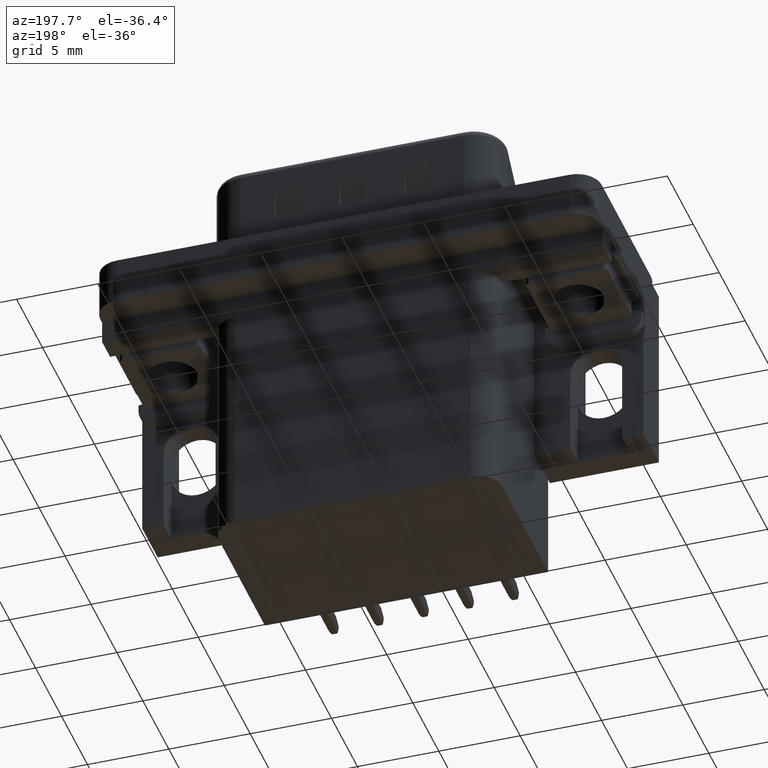
[diagram: clean part render]
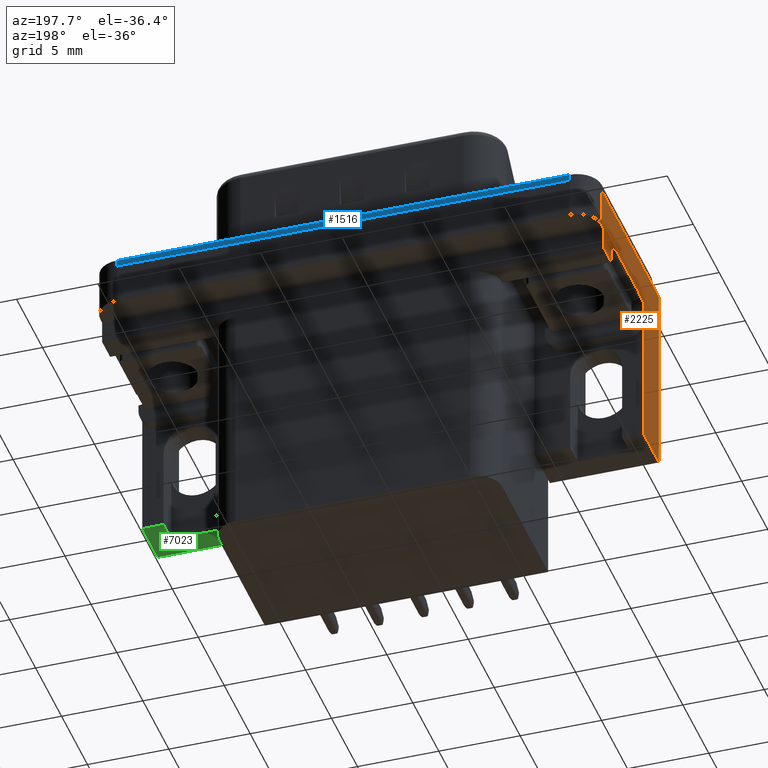
[diagram: same view with three faces highlighted in distinct colors, each labeled with its STEP entity id]
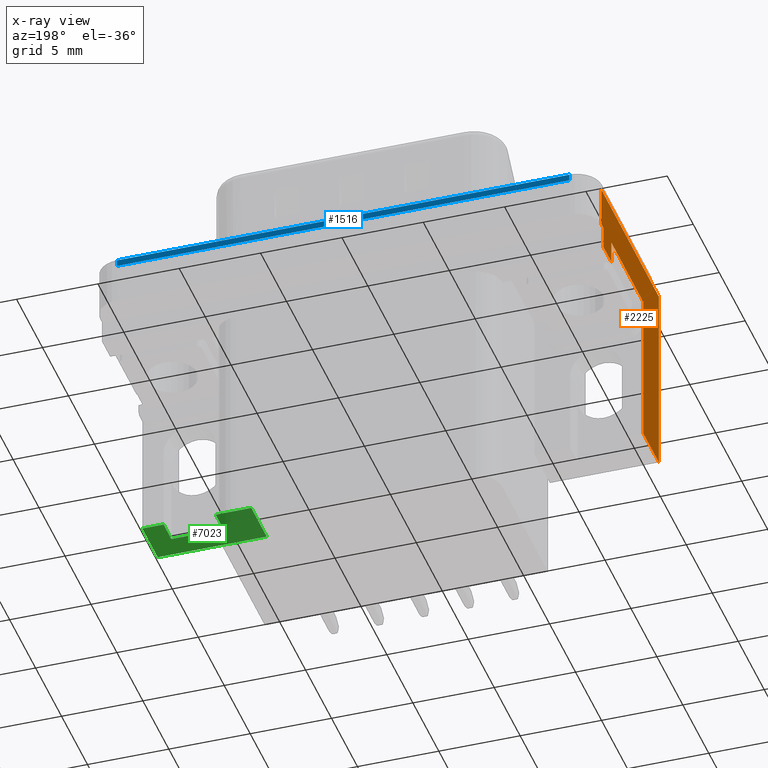
[diagram: x-ray of the same camera — body ghosted, the three highlighted faces saturated]
A machine part, auxiliary view with three faces highlighted in distinct colors.
The next image is the same camera in x-ray (body ghosted, the three faces saturated) — at least one of them is partly hidden behind the body in this view.
Their STEP definitions:

[orange] entity #2225 — the highlighted planar face has unit normal (-1, 0, 0).
#240 = CARTESIAN_POINT ( 'NONE',  ( -2.910000000000004600, -6.294999999999998200, -12.05000000000000100 ) ) ;
#341 = CARTESIAN_POINT ( 'NONE',  ( -2.910000000000005900, -3.294999999999998200, -18.75999999999999800 ) ) ;
#343 = CARTESIAN_POINT ( 'NONE',  ( -2.910000000000005500, 4.424999999999992700, -3.899999999999999900 ) ) ;
#594 = VECTOR ( 'NONE', #10083, 1000.000000000000000 ) ;
#701 = CARTESIAN_POINT ( 'NONE',  ( -2.910000000000006400, -6.274999999999998600, -2.500000000000000000 ) ) ;
#762 = VECTOR ( 'NONE', #1427, 1000.000000000000000 ) ;
#1119 = CARTESIAN_POINT ( 'NONE',  ( -2.910000000000006400, -6.274999999999998600, -2.500000000000000000 ) ) ;
#1199 = AXIS2_PLACEMENT_3D ( 'NONE', #1119, #4032, #4273 ) ;
#1427 = DIRECTION ( 'NONE',  ( -0.0000000000000000000, -0.0000000000000000000, 1.000000000000000000 ) ) ;
#1469 = ORIENTED_EDGE ( 'NONE', *, *, #10593, .T. ) ;
#1606 = LINE ( 'NONE', #10979, #9900 ) ;
#1742 = LINE ( 'NONE', #1770, #10037 ) ;
#1770 = CARTESIAN_POINT ( 'NONE',  ( -2.910000000000006400, -6.274999999999998600, 0.0000000000000000000 ) ) ;
#1849 = ORIENTED_EDGE ( 'NONE', *, *, #10485, .T. ) ;
#1932 = LINE ( 'NONE', #240, #5185 ) ;
#2225 = ADVANCED_FACE ( 'NONE', ( #13139 ), #10428, .T. ) ;
#2686 = CARTESIAN_POINT ( 'NONE',  ( -2.910000000000006400, -6.274999999999998600, -2.500000000000000000 ) ) ;
#2697 = VERTEX_POINT ( 'NONE', #9271 ) ;
#2820 = VECTOR ( 'NONE', #4365, 1000.000000000000000 ) ;
#2922 = DIRECTION ( 'NONE',  ( 0.0000000000000000000, 0.0000000000000000000, 1.000000000000000000 ) ) ;
#3004 = VECTOR ( 'NONE', #10636, 1000.000000000000000 ) ;
#3017 = ORIENTED_EDGE ( 'NONE', *, *, #7480, .F. ) ;
#3708 = CARTESIAN_POINT ( 'NONE',  ( -2.910000000000005500, 4.424999999999992700, -3.899999999999999900 ) ) ;
#3807 = DIRECTION ( 'NONE',  ( -0.0000000000000000000, -1.000000000000000000, -0.0000000000000000000 ) ) ;
#4032 = DIRECTION ( 'NONE',  ( -1.000000000000000000, 0.0000000000000000000, 0.0000000000000000000 ) ) ;
#4040 = VECTOR ( 'NONE', #3807, 1000.000000000000000 ) ;
#4273 = DIRECTION ( 'NONE',  ( 0.0000000000000000000, 0.0000000000000000000, 1.000000000000000000 ) ) ;
#4321 = VERTEX_POINT ( 'NONE', #5685 ) ;
#4365 = DIRECTION ( 'NONE',  ( 0.0000000000000000000, 0.0000000000000000000, 1.000000000000000000 ) ) ;
#4440 = CARTESIAN_POINT ( 'NONE',  ( -2.910000000000004600, -3.294999999999998200, -12.05000000000000100 ) ) ;
#4904 = VERTEX_POINT ( 'NONE', #14018 ) ;
#4966 = ORIENTED_EDGE ( 'NONE', *, *, #7264, .F. ) ;
#5059 = ORIENTED_EDGE ( 'NONE', *, *, #10791, .F. ) ;
#5117 = EDGE_LOOP ( 'NONE', ( #4966, #1469, #3017, #5059, #10599, #10489, #6187, #8160, #1849, #8858 ) ) ;
#5185 = VECTOR ( 'NONE', #6801, 1000.000000000000000 ) ;
#5430 = CARTESIAN_POINT ( 'NONE',  ( -2.910000000000006400, 4.775000000000002100, -2.500000000000000000 ) ) ;
#5589 = DIRECTION ( 'NONE',  ( -0.0000000000000000000, -1.000000000000000000, -0.0000000000000000000 ) ) ;
#5685 = CARTESIAN_POINT ( 'NONE',  ( -2.910000000000006400, 4.775000000000002100, -2.500000000000000000 ) ) ;
#5688 = LINE ( 'NONE', #5430, #2820 ) ;
#5943 = EDGE_CURVE ( 'NONE', #7847, #10066, #6572, .T. ) ;
#6187 = ORIENTED_EDGE ( 'NONE', *, *, #6510, .F. ) ;
#6247 = CARTESIAN_POINT ( 'NONE',  ( -2.910000000000006400, -3.294999999999998600, -2.500000000000000000 ) ) ;
#6345 = VERTEX_POINT ( 'NONE', #13059 ) ;
#6387 = EDGE_CURVE ( 'NONE', #4321, #2697, #1606, .T. ) ;
#6510 = EDGE_CURVE ( 'NONE', #12375, #8077, #11757, .T. ) ;
#6572 = LINE ( 'NONE', #341, #762 ) ;
#6801 = DIRECTION ( 'NONE',  ( 6.472848790958235800E-017, 1.000000000000000000, -0.0000000000000000000 ) ) ;
#7264 = EDGE_CURVE ( 'NONE', #8297, #7847, #1932, .T. ) ;
#7480 = EDGE_CURVE ( 'NONE', #4904, #6345, #1742, .T. ) ;
#7847 = VERTEX_POINT ( 'NONE', #4440 ) ;
#8077 = VERTEX_POINT ( 'NONE', #343 ) ;
#8160 = ORIENTED_EDGE ( 'NONE', *, *, #10152, .T. ) ;
#8297 = VERTEX_POINT ( 'NONE', #11592 ) ;
#8858 = ORIENTED_EDGE ( 'NONE', *, *, #5943, .F. ) ;
#9271 = CARTESIAN_POINT ( 'NONE',  ( -2.910000000000006400, 4.424999999999992700, -2.500000000000000000 ) ) ;
#9368 = DIRECTION ( 'NONE',  ( -0.0000000000000000000, -1.000000000000000000, -0.0000000000000000000 ) ) ;
#9462 = VERTEX_POINT ( 'NONE', #10481 ) ;
#9575 = CARTESIAN_POINT ( 'NONE',  ( -2.910000000000005900, 2.894999999999992500, -3.899999999999999900 ) ) ;
#9811 = EDGE_CURVE ( 'NONE', #8077, #2697, #12100, .T. ) ;
#9900 = VECTOR ( 'NONE', #5589, 1000.000000000000000 ) ;
#10037 = VECTOR ( 'NONE', #9368, 1000.000000000000000 ) ;
#10066 = VERTEX_POINT ( 'NONE', #6247 ) ;
#10083 = DIRECTION ( 'NONE',  ( -0.0000000000000000000, -0.0000000000000000000, 1.000000000000000000 ) ) ;
#10129 = CARTESIAN_POINT ( 'NONE',  ( -2.910000000000005500, 4.424999999999992700, -3.899999999999999900 ) ) ;
#10152 = EDGE_CURVE ( 'NONE', #12375, #9462, #11595, .T. ) ;
#10428 = PLANE ( 'NONE',  #1199 ) ;
#10481 = CARTESIAN_POINT ( 'NONE',  ( -2.910000000000005900, 2.894999999999992500, -2.500000000000000000 ) ) ;
#10485 = EDGE_CURVE ( 'NONE', #9462, #10066, #12921, .T. ) ;
#10489 = ORIENTED_EDGE ( 'NONE', *, *, #9811, .F. ) ;
#10557 = VECTOR ( 'NONE', #2922, 1000.000000000000000 ) ;
#10593 = EDGE_CURVE ( 'NONE', #8297, #6345, #13432, .T. ) ;
#10599 = ORIENTED_EDGE ( 'NONE', *, *, #6387, .T. ) ;
#10636 = DIRECTION ( 'NONE',  ( -0.0000000000000000000, -0.0000000000000000000, 1.000000000000000000 ) ) ;
#10791 = EDGE_CURVE ( 'NONE', #4321, #4904, #5688, .T. ) ;
#10979 = CARTESIAN_POINT ( 'NONE',  ( -2.910000000000006400, -6.274999999999998600, -2.500000000000000000 ) ) ;
#11068 = VECTOR ( 'NONE', #13391, 1000.000000000000000 ) ;
#11592 = CARTESIAN_POINT ( 'NONE',  ( -2.910000000000004600, -6.274999999999998600, -12.05000000000000100 ) ) ;
#11595 = LINE ( 'NONE', #9575, #3004 ) ;
#11757 = LINE ( 'NONE', #3708, #11068 ) ;
#12100 = LINE ( 'NONE', #10129, #594 ) ;
#12375 = VERTEX_POINT ( 'NONE', #13566 ) ;
#12921 = LINE ( 'NONE', #2686, #4040 ) ;
#13059 = CARTESIAN_POINT ( 'NONE',  ( -2.910000000000006400, -6.274999999999998600, 0.0000000000000000000 ) ) ;
#13139 = FACE_OUTER_BOUND ( 'NONE', #5117, .T. ) ;
#13391 = DIRECTION ( 'NONE',  ( 2.834515483622234600E-016, 1.000000000000000000, -0.0000000000000000000 ) ) ;
#13432 = LINE ( 'NONE', #701, #10557 ) ;
#13566 = CARTESIAN_POINT ( 'NONE',  ( -2.910000000000005900, 2.894999999999992500, -3.899999999999999900 ) ) ;
#14018 = CARTESIAN_POINT ( 'NONE',  ( -2.910000000000006400, 4.775000000000002100, 0.0000000000000000000 ) ) ;

[blue] entity #1516 — the highlighted planar face has unit normal (0, -1, 0).
#118 = LINE ( 'NONE', #2304, #5586 ) ;
#322 = CARTESIAN_POINT ( 'NONE',  ( -1.409999999999994800, 6.274999999999995900, 0.0000000000000000000 ) ) ;
#718 = CARTESIAN_POINT ( 'NONE',  ( 26.39999999999999900, 6.274999999999997700, 0.0000000000000000000 ) ) ;
#797 = EDGE_CURVE ( 'NONE', #9365, #12160, #118, .T. ) ;
#861 = CARTESIAN_POINT ( 'NONE',  ( 26.39999999999999900, 6.274999999999997700, 0.4000000000000000200 ) ) ;
#1444 = EDGE_CURVE ( 'NONE', #2888, #12160, #4447, .T. ) ;
#1516 = ADVANCED_FACE ( 'NONE', ( #9803 ), #4176, .F. ) ;
#1540 = CARTESIAN_POINT ( 'NONE',  ( 26.39999999999999900, 6.274999999999997700, 0.4000000000000000200 ) ) ;
#1595 = CARTESIAN_POINT ( 'NONE',  ( -1.409999999999994800, 6.274999999999995900, 0.4000000000000000200 ) ) ;
#1848 = VECTOR ( 'NONE', #13731, 1000.000000000000000 ) ;
#2291 = DIRECTION ( 'NONE',  ( 6.237768701822393400E-017, -1.000000000000000000, 0.0000000000000000000 ) ) ;
#2304 = CARTESIAN_POINT ( 'NONE',  ( -1.409999999999994800, 6.274999999999995900, 0.4000000000000000200 ) ) ;
#2888 = VERTEX_POINT ( 'NONE', #5299 ) ;
#3276 = EDGE_LOOP ( 'NONE', ( #7468, #10078, #12126, #4640 ) ) ;
#3519 = DIRECTION ( 'NONE',  ( -0.0000000000000000000, -0.0000000000000000000, -1.000000000000000000 ) ) ;
#4176 = PLANE ( 'NONE',  #10889 ) ;
#4447 = LINE ( 'NONE', #718, #1848 ) ;
#4640 = ORIENTED_EDGE ( 'NONE', *, *, #8124, .T. ) ;
#5299 = CARTESIAN_POINT ( 'NONE',  ( 26.39999999999999900, 6.274999999999997700, 0.0000000000000000000 ) ) ;
#5586 = VECTOR ( 'NONE', #3519, 1000.000000000000000 ) ;
#5863 = CARTESIAN_POINT ( 'NONE',  ( 26.39999999999999900, 6.274999999999997700, 0.4000000000000000200 ) ) ;
#6222 = EDGE_CURVE ( 'NONE', #13385, #9365, #12262, .T. ) ;
#7468 = ORIENTED_EDGE ( 'NONE', *, *, #1444, .T. ) ;
#8124 = EDGE_CURVE ( 'NONE', #13385, #2888, #12218, .T. ) ;
#8365 = VECTOR ( 'NONE', #12304, 1000.000000000000000 ) ;
#8459 = DIRECTION ( 'NONE',  ( -1.000000000000000000, -6.237768701822393400E-017, 0.0000000000000000000 ) ) ;
#9365 = VERTEX_POINT ( 'NONE', #1595 ) ;
#9416 = VECTOR ( 'NONE', #8459, 1000.000000000000000 ) ;
#9803 = FACE_OUTER_BOUND ( 'NONE', #3276, .T. ) ;
#10078 = ORIENTED_EDGE ( 'NONE', *, *, #797, .F. ) ;
#10194 = DIRECTION ( 'NONE',  ( 1.000000000000000000, 6.237768701822393400E-017, 0.0000000000000000000 ) ) ;
#10889 = AXIS2_PLACEMENT_3D ( 'NONE', #11524, #2291, #10194 ) ;
#11524 = CARTESIAN_POINT ( 'NONE',  ( 26.39999999999999900, 6.274999999999997700, 0.4000000000000000200 ) ) ;
#12126 = ORIENTED_EDGE ( 'NONE', *, *, #6222, .F. ) ;
#12160 = VERTEX_POINT ( 'NONE', #322 ) ;
#12218 = LINE ( 'NONE', #5863, #8365 ) ;
#12262 = LINE ( 'NONE', #861, #9416 ) ;
#12304 = DIRECTION ( 'NONE',  ( -0.0000000000000000000, -0.0000000000000000000, -1.000000000000000000 ) ) ;
#13385 = VERTEX_POINT ( 'NONE', #1540 ) ;
#13731 = DIRECTION ( 'NONE',  ( -1.000000000000000000, -6.237768701822393400E-017, 0.0000000000000000000 ) ) ;

[green] entity #7023 — the highlighted planar face has unit normal (0, 0, 1).
#31 = VERTEX_POINT ( 'NONE', #9097 ) ;
#78 = DIRECTION ( 'NONE',  ( 1.000000000000000000, 0.0000000000000000000, -0.0000000000000000000 ) ) ;
#117 = VERTEX_POINT ( 'NONE', #7704 ) ;
#253 = CARTESIAN_POINT ( 'NONE',  ( 27.89999999999999500, -6.294999999999999900, -12.05000000000000100 ) ) ;
#292 = LINE ( 'NONE', #12338, #11140 ) ;
#553 = EDGE_CURVE ( 'NONE', #649, #11576, #292, .T. ) ;
#593 = ORIENTED_EDGE ( 'NONE', *, *, #553, .F. ) ;
#649 = VERTEX_POINT ( 'NONE', #7891 ) ;
#757 = LINE ( 'NONE', #8406, #11931 ) ;
#925 = DIRECTION ( 'NONE',  ( 0.0000000000000000000, 1.000000000000000000, -0.0000000000000000000 ) ) ;
#1042 = EDGE_LOOP ( 'NONE', ( #7139, #11251, #11337, #7859, #1633, #593, #8093, #10449, #13166 ) ) ;
#1140 = VERTEX_POINT ( 'NONE', #8037 ) ;
#1633 = ORIENTED_EDGE ( 'NONE', *, *, #2021, .F. ) ;
#1923 = VECTOR ( 'NONE', #5864, 1000.000000000000000 ) ;
#2021 = EDGE_CURVE ( 'NONE', #11576, #117, #6275, .T. ) ;
#2290 = DIRECTION ( 'NONE',  ( 1.000000000000000000, -6.472848790958238200E-017, 0.0000000000000000000 ) ) ;
#2403 = EDGE_CURVE ( 'NONE', #6626, #13014, #11800, .T. ) ;
#2428 = LINE ( 'NONE', #8263, #13550 ) ;
#2452 = DIRECTION ( 'NONE',  ( 6.472848790958235800E-017, 1.000000000000000000, -0.0000000000000000000 ) ) ;
#2532 = VECTOR ( 'NONE', #6611, 1000.000000000000000 ) ;
#2696 = CARTESIAN_POINT ( 'NONE',  ( 21.19999999999999600, -3.294999999999999500, -12.05000000000000100 ) ) ;
#3815 = VECTOR ( 'NONE', #13425, 1000.000000000000000 ) ;
#4146 = DIRECTION ( 'NONE',  ( 6.472848790958235800E-017, 1.000000000000000000, -0.0000000000000000000 ) ) ;
#4270 = CARTESIAN_POINT ( 'NONE',  ( 21.19999999999999600, -6.294999999999999000, -12.05000000000000100 ) ) ;
#4849 = LINE ( 'NONE', #10187, #1923 ) ;
#4871 = VERTEX_POINT ( 'NONE', #12861 ) ;
#5864 = DIRECTION ( 'NONE',  ( -1.000000000000000000, 0.0000000000000000000, 0.0000000000000000000 ) ) ;
#6275 = LINE ( 'NONE', #10616, #8790 ) ;
#6415 = CARTESIAN_POINT ( 'NONE',  ( 21.19999999999999600, -3.294999999999999500, -12.05000000000000100 ) ) ;
#6604 = CARTESIAN_POINT ( 'NONE',  ( 21.19999999999999600, -3.294999999999999500, -12.05000000000000100 ) ) ;
#6611 = DIRECTION ( 'NONE',  ( 6.472848790958235800E-017, 1.000000000000000000, -0.0000000000000000000 ) ) ;
#6623 = DIRECTION ( 'NONE',  ( 0.0000000000000000000, 0.0000000000000000000, 1.000000000000000000 ) ) ;
#6626 = VERTEX_POINT ( 'NONE', #12397 ) ;
#6965 = VERTEX_POINT ( 'NONE', #10831 ) ;
#7023 = ADVANCED_FACE ( 'NONE', ( #8229 ), #13050, .F. ) ;
#7139 = ORIENTED_EDGE ( 'NONE', *, *, #11623, .T. ) ;
#7669 = CARTESIAN_POINT ( 'NONE',  ( 21.19999999999999600, -6.294999999999999000, -12.05000000000000100 ) ) ;
#7704 = CARTESIAN_POINT ( 'NONE',  ( 23.39000000000000800, -3.294999999999999500, -12.05000000000000100 ) ) ;
#7859 = ORIENTED_EDGE ( 'NONE', *, *, #8663, .T. ) ;
#7891 = CARTESIAN_POINT ( 'NONE',  ( 26.58999999999998900, -4.794999999999998200, -12.05000000000000100 ) ) ;
#8037 = CARTESIAN_POINT ( 'NONE',  ( 27.89999999999999500, -3.294999999999999900, -12.05000000000000100 ) ) ;
#8093 = ORIENTED_EDGE ( 'NONE', *, *, #8809, .F. ) ;
#8229 = FACE_OUTER_BOUND ( 'NONE', #1042, .T. ) ;
#8244 = LINE ( 'NONE', #253, #11418 ) ;
#8263 = CARTESIAN_POINT ( 'NONE',  ( 26.58999999999998900, -4.774999999999997700, -12.05000000000000100 ) ) ;
#8406 = CARTESIAN_POINT ( 'NONE',  ( 21.19999999999999600, -6.294999999999999000, -12.05000000000000100 ) ) ;
#8663 = EDGE_CURVE ( 'NONE', #13014, #117, #12371, .T. ) ;
#8790 = VECTOR ( 'NONE', #925, 1000.000000000000000 ) ;
#8809 = EDGE_CURVE ( 'NONE', #6965, #649, #2428, .T. ) ;
#9097 = CARTESIAN_POINT ( 'NONE',  ( 27.89999999999999500, -6.274999999999998600, -12.05000000000000100 ) ) ;
#10067 = EDGE_CURVE ( 'NONE', #4871, #6626, #757, .T. ) ;
#10086 = CARTESIAN_POINT ( 'NONE',  ( 23.38999999999997900, -4.794999999999998200, -12.04999999999999900 ) ) ;
#10187 = CARTESIAN_POINT ( 'NONE',  ( -2.910000000000006400, -6.274999999999998600, -12.05000000000000100 ) ) ;
#10379 = VECTOR ( 'NONE', #2290, 1000.000000000000000 ) ;
#10385 = EDGE_CURVE ( 'NONE', #31, #1140, #8244, .T. ) ;
#10393 = DIRECTION ( 'NONE',  ( 0.0000000000000000000, -1.000000000000000000, 0.0000000000000000000 ) ) ;
#10449 = ORIENTED_EDGE ( 'NONE', *, *, #10882, .T. ) ;
#10616 = CARTESIAN_POINT ( 'NONE',  ( 23.39000000000000800, -4.774999999999997700, -12.05000000000000100 ) ) ;
#10831 = CARTESIAN_POINT ( 'NONE',  ( 26.58999999999998900, -3.294999999999999900, -12.05000000000000100 ) ) ;
#10882 = EDGE_CURVE ( 'NONE', #6965, #1140, #13252, .T. ) ;
#10978 = DIRECTION ( 'NONE',  ( -1.000000000000000000, 0.0000000000000000000, 0.0000000000000000000 ) ) ;
#11140 = VECTOR ( 'NONE', #10978, 1000.000000000000000 ) ;
#11251 = ORIENTED_EDGE ( 'NONE', *, *, #10067, .T. ) ;
#11337 = ORIENTED_EDGE ( 'NONE', *, *, #2403, .T. ) ;
#11418 = VECTOR ( 'NONE', #2452, 1000.000000000000000 ) ;
#11576 = VERTEX_POINT ( 'NONE', #10086 ) ;
#11623 = EDGE_CURVE ( 'NONE', #31, #4871, #4849, .T. ) ;
#11800 = LINE ( 'NONE', #4270, #2532 ) ;
#11931 = VECTOR ( 'NONE', #4146, 1000.000000000000000 ) ;
#12226 = AXIS2_PLACEMENT_3D ( 'NONE', #7669, #6623, #78 ) ;
#12338 = CARTESIAN_POINT ( 'NONE',  ( 24.98999999999998400, -4.794999999999998200, -12.05000000000000100 ) ) ;
#12371 = LINE ( 'NONE', #2696, #3815 ) ;
#12397 = CARTESIAN_POINT ( 'NONE',  ( 21.19999999999999600, -5.925000000000003400, -12.05000000000000100 ) ) ;
#12861 = CARTESIAN_POINT ( 'NONE',  ( 21.19999999999999600, -6.275000000000003000, -12.05000000000000100 ) ) ;
#13014 = VERTEX_POINT ( 'NONE', #6415 ) ;
#13050 = PLANE ( 'NONE',  #12226 ) ;
#13166 = ORIENTED_EDGE ( 'NONE', *, *, #10385, .F. ) ;
#13252 = LINE ( 'NONE', #6604, #10379 ) ;
#13425 = DIRECTION ( 'NONE',  ( 1.000000000000000000, -6.472848790958238200E-017, 0.0000000000000000000 ) ) ;
#13550 = VECTOR ( 'NONE', #10393, 1000.000000000000000 ) ;